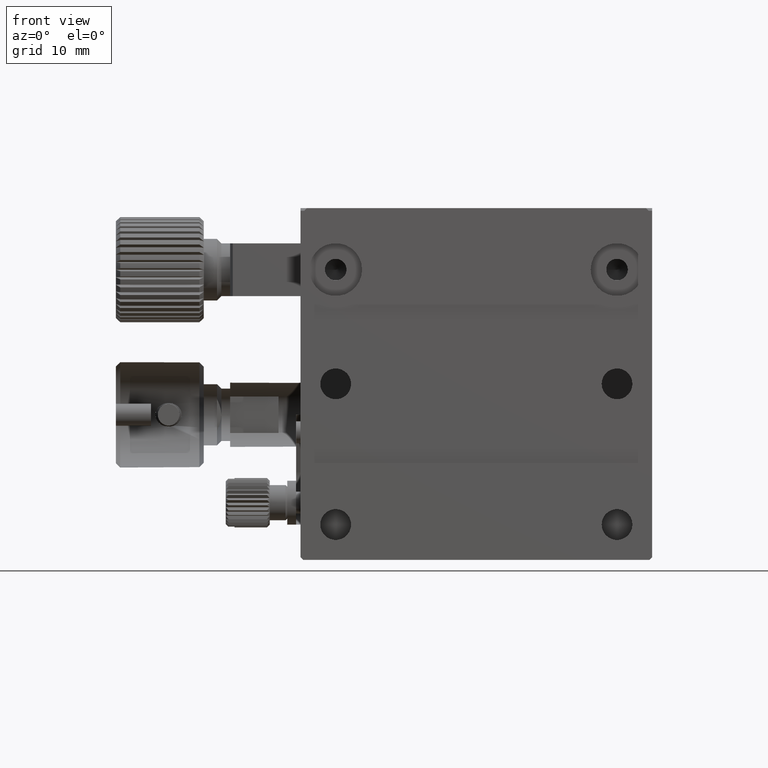
[diagram: clean part render]
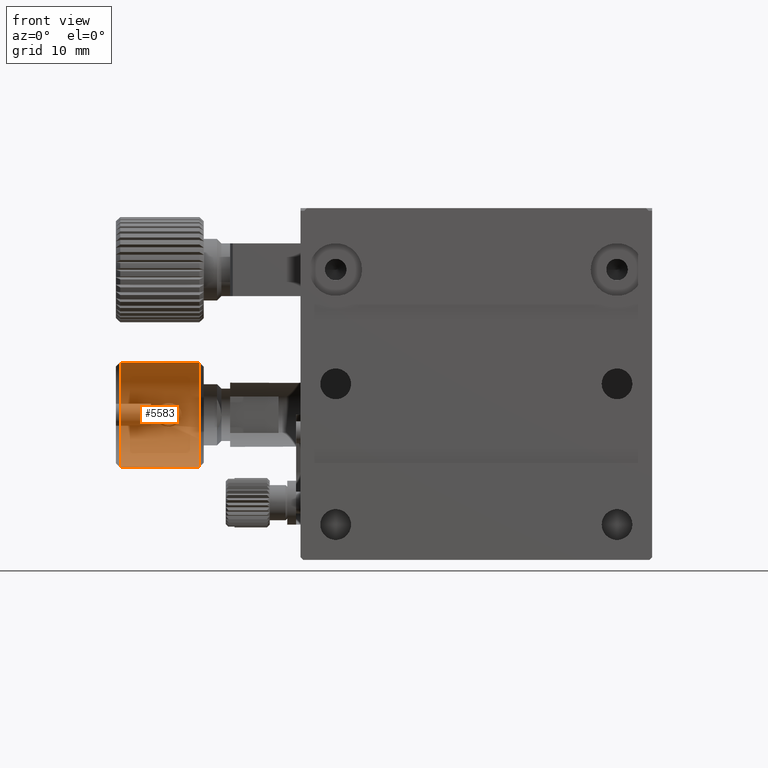
[diagram: same view with one face highlighted and labeled with its STEP entity id]
A machine part, front view. The second image highlights one B-rep face of the part: STEP entity #5583.
In plain terms, the highlighted cylindrical surface (bore or boss wall) has radius 6 mm, axis along (-1, -0, 0).
Its self-contained STEP definition (entity closure, byte-faithful):
#22 = CARTESIAN_POINT ( 'NONE',  ( -14.59815187256463531, 33.85547732965907386, -24.80896342265499754 ) ) ;
#117 = CARTESIAN_POINT ( 'NONE',  ( -14.50807464312807404, 33.85933041520340936, -24.79160639727135873 ) ) ;
#128 = CARTESIAN_POINT ( 'NONE',  ( -11.49999999999999645, 22.00000000000000711, -23.50000000000000000 ) ) ;
#220 = CARTESIAN_POINT ( 'NONE',  ( -14.53842938340480018, 33.85368966296076820, -24.81694167652915084 ) ) ;
#271 = EDGE_CURVE ( 'NONE', #14569, #14569, #4338, .T. ) ;
#318 = CARTESIAN_POINT ( 'NONE',  ( -14.64454077063680160, 33.84596638465675511, -24.85080606656292446 ) ) ;
#409 = CARTESIAN_POINT ( 'NONE',  ( -14.64701626850036575, 33.84578708380155376, -24.85158180324351207 ) ) ;
#432 = CARTESIAN_POINT ( 'NONE',  ( -13.89523326952814308, 33.93050088590032942, -24.41401004206937486 ) ) ;
#485 = CARTESIAN_POINT ( 'NONE',  ( -50.00000000000000000, 27.99999999999999645, -23.50000000000000000 ) ) ;
#506 = CARTESIAN_POINT ( 'NONE',  ( -14.28023316524445541, 33.87163790847883860, -24.73445082236190729 ) ) ;
#549 = EDGE_LOOP ( 'NONE', ( #11217 ) ) ;
#604 = CARTESIAN_POINT ( 'NONE',  ( -14.48700770284660955, 33.85736381613900647, -24.80052285318587124 ) ) ;
#690 = CARTESIAN_POINT ( 'NONE',  ( -14.56240171216548696, 33.85280787879207764, -24.82085653750405640 ) ) ;
#708 = CARTESIAN_POINT ( 'NONE',  ( -13.93233828515123207, 33.92490168700157227, -22.54973388084579966 ) ) ;
#800 = CARTESIAN_POINT ( 'NONE',  ( -15.78525906444292559, 33.88910418664969626, -22.35176140163074621 ) ) ;
#896 = CARTESIAN_POINT ( 'NONE',  ( -16.22428704249219322, 33.95038683751863573, -22.72962798062242484 ) ) ;
#918 = CARTESIAN_POINT ( 'NONE',  ( -11.49999999999999645, 28.00000000000000355, -23.50000000000000000 ) ) ;
#987 = CARTESIAN_POINT ( 'NONE',  ( -14.53874725132028445, 33.86066338116577867, -22.21380243217639716 ) ) ;
#1067 = CARTESIAN_POINT ( 'NONE',  ( -14.51527821878740454, 33.85707530132543042, -24.80179449783890178 ) ) ;
#1085 = CARTESIAN_POINT ( 'NONE',  ( -15.46598883740046837, 33.86156433241004038, -22.21856971433540195 ) ) ;
#1186 = CARTESIAN_POINT ( 'NONE',  ( -15.33979757910854858, 33.85476993812656588, -24.81212384004311744 ) ) ;
#1282 = CARTESIAN_POINT ( 'NONE',  ( -14.58333273833094879, 33.85606280325573181, -24.80634438280025833 ) ) ;
#1388 = CARTESIAN_POINT ( 'NONE',  ( -14.31043504511575470, 33.86977474601178528, -24.74327970750040606 ) ) ;
#1478 = EDGE_CURVE ( 'NONE', #18012, #18012, #11283, .T. ) ;
#1494 = CARTESIAN_POINT ( 'NONE',  ( -15.31106230289858594, 33.85344806083703872, -24.81802213041816429 ) ) ;
#1596 = CARTESIAN_POINT ( 'NONE',  ( -15.45347562089624205, 33.86067916078079776, -24.78559974126726217 ) ) ;
#1695 = CARTESIAN_POINT ( 'NONE',  ( -14.27505602730072631, 33.87198717683380522, -24.73278815947931264 ) ) ;
#1796 = CARTESIAN_POINT ( 'NONE',  ( -14.63172210229369519, 33.84690989306720610, -24.84671643820882991 ) ) ;
#1894 = CARTESIAN_POINT ( 'NONE',  ( -14.43652629300351542, 33.86091470257821356, -24.78439824396583191 ) ) ;
#1913 = CARTESIAN_POINT ( 'NONE',  ( -13.75828006473599885, 33.95312060952738165, -22.75104019613347361 ) ) ;
#1985 = CARTESIAN_POINT ( 'NONE',  ( -14.28711905805123017, 33.87117464012844437, -24.73665212815903303 ) ) ;
#2060 = CYLINDRICAL_SURFACE ( 'NONE', #19314, 5.999999999999998224 ) ;
#2082 = CARTESIAN_POINT ( 'NONE',  ( -14.62622880148807880, 33.84737968347617709, -24.84469024521191827 ) ) ;
#2104 = CARTESIAN_POINT ( 'NONE',  ( -13.47755154632831598, 34.00422158935926831, -23.47283054350310039 ) ) ;
#2198 = CARTESIAN_POINT ( 'NONE',  ( -16.11060013701571236, 33.93176377132803623, -22.59679206459620815 ) ) ;
#2284 = CARTESIAN_POINT ( 'NONE',  ( -14.34605817136026751, 33.87616343589920120, -22.28727444382444745 ) ) ;
#2378 = CARTESIAN_POINT ( 'NONE',  ( -16.37248415955266267, 33.97639734066753903, -24.03235426510197215 ) ) ;
#2474 = CARTESIAN_POINT ( 'NONE',  ( -14.21335041263401600, 33.88902127225746597, -22.35102289706027534 ) ) ;
#2549 = CARTESIAN_POINT ( 'NONE',  ( -14.52738881091771894, 33.85596309507469925, -24.80678913212890180 ) ) ;
#2565 = CARTESIAN_POINT ( 'NONE',  ( -16.38538115400064399, 33.97873630557894842, -24.00541854655704199 ) ) ;
#2662 = CARTESIAN_POINT ( 'NONE',  ( -15.39726813152847029, 33.85741369270561307, -24.80032725929301662 ) ) ;
#2765 = CARTESIAN_POINT ( 'NONE',  ( -14.51024920879697611, 33.85923058902722005, -24.79205925547306322 ) ) ;
#2861 = CARTESIAN_POINT ( 'NONE',  ( -14.32213603329998719, 33.86907370345211632, -24.74658488016133262 ) ) ;
#2962 = CARTESIAN_POINT ( 'NONE',  ( -14.35776018720592795, 33.86700774611755804, -24.75627230606925977 ) ) ;
#3066 = CARTESIAN_POINT ( 'NONE',  ( -14.56841673542771964, 33.85667702096889542, -24.80358852901014188 ) ) ;
#3167 = CARTESIAN_POINT ( 'NONE',  ( -14.58401554362242791, 33.85039550879261583, -24.83149297336512973 ) ) ;
#3243 = DIRECTION ( 'NONE',  ( 0.000000000000000000, -1.000000000000000000, 0.000000000000000000 ) ) ;
#3265 = CARTESIAN_POINT ( 'NONE',  ( -14.62343176418751156, 33.84751862939668854, -24.84407132230305137 ) ) ;
#3285 = CARTESIAN_POINT ( 'NONE',  ( -13.81393866272629012, 33.94385453996342505, -22.68076495588551467 ) ) ;
#3361 = CARTESIAN_POINT ( 'NONE',  ( -14.64977000644503313, 33.84557999490811397, -24.85247722505653556 ) ) ;
#3435 = ORIENTED_EDGE ( 'NONE', *, *, #1478, .F. ) ;
#3461 = CARTESIAN_POINT ( 'NONE',  ( -14.28642942551402051, 33.87122114016541730, -24.73643167177652558 ) ) ;
#3550 = CARTESIAN_POINT ( 'NONE',  ( -14.27410100241049484, 33.87204967977976366, -24.73249041435894924 ) ) ;
#3690 = DIRECTION ( 'NONE',  ( 0.000000000000000000, -1.000000000000000000, 0.000000000000000000 ) ) ;
#3740 = CARTESIAN_POINT ( 'NONE',  ( -14.53334519134713609, 33.85542048415637595, -24.80921768767531432 ) ) ;
#3758 = CARTESIAN_POINT ( 'NONE',  ( -16.20626816759001798, 33.94733869439025398, -22.70647800594487720 ) ) ;
#3851 = CARTESIAN_POINT ( 'NONE',  ( -16.50172688932017095, 34.00032391347703253, -23.59389006757698937 ) ) ;
#3952 = CARTESIAN_POINT ( 'NONE',  ( -14.76858274998892817, 33.85057067841652412, -22.16927736291410866 ) ) ;
#4031 = CARTESIAN_POINT ( 'NONE',  ( -14.58438080868271136, 33.85089662375993669, -24.82928879408297718 ) ) ;
#4051 = CARTESIAN_POINT ( 'NONE',  ( -14.40243723293195188, 33.87130233189502349, -22.26391185866062727 ) ) ;
#4141 = CARTESIAN_POINT ( 'NONE',  ( -14.65230624836584461, 33.85427216992204080, -22.18555110551461240 ) ) ;
#4240 = CARTESIAN_POINT ( 'NONE',  ( -15.50842004721185496, 33.86450004630584942, -24.76792712995609946 ) ) ;
#4338 = B_SPLINE_CURVE_WITH_KNOTS ( 'NONE', 3,
 ( #11028, #432, #16820, #9371, #17006, #15352, #9556, #15538, #2104, #8103, #14059, #9648, #15638, #7706, #12213, #18204, #1913, #16720, #7904, #3285, #13866, #17574, #708, #12767, #8195, #11595, #2474, #14143, #17377, #8469, #2284, #17286, #4051, #14436, #987, #4141, #3952, #6710, #9931, #14535, #12952, #11401, #15919, #18673, #12676, #1085, #14243, #17193, #6991, #5230, #7085, #800, #10023, #10114, #8379, #2198, #8285, #11215, #3758, #896, #9740, #15723, #6800, #18767, #18956, #5325, #14343, #3851, #11307, #16007, #19059, #9833, #15815, #2565, #2378, #6896, #5519, #12855, #18859, #11499, #5420, #17478, #8565, #13051, #5616, #8768, #5915, #16501, #4637, #4440, #4240, #1596, #2662, #1186, #1494, #18079, #15036, #7582, #11988, #8668, #13354, #14631, #16299, #6015, #8960, #10415, #7184, #14729, #13151, #19154, #16202, #9060, #17779, #5710, #22, #1282, #3066, #11798, #11692, #11894, #16103, #10221, #13551, #17675, #7281, #2765, #117, #17880, #13251, #16403, #6116, #19255, #2962, #5811, #12088, #4344, #10320, #7489, #2861, #8862, #14828, #1388, #7381, #19360, #14935, #13461, #17979, #4537, #10515, #1695, #9252, #9156, #7682, #10718, #3550, #12285, #16601, #13939, #506, #16897, #13649, #15425, #10913, #1985, #3461, #10619, #18274, #16798, #1894, #7883, #604, #7786, #16699, #220, #18472, #12570, #16986, #12192, #8083, #15136, #9536, #3167, #15519, #4831, #13845, #4736, #14038, #7978, #3265, #6597, #6219, #1796, #18180, #15228, #9444, #13750, #6403, #6505, #318, #6312, #12481, #11008, #10819, #3361, #9353, #15332, #12386, #409, #18377, #4933, #5026, #2082, #15620, #4031, #17173, #690, #9908, #17078, #10004, #3740, #12932, #2549, #14513, #9721, #6687, #17266, #5400, #11288, #1067, #12657, #5208, #18650 ),
 .UNSPECIFIED., .T., .F.,
 ( 4, 3, 3, 3, 3, 3, 3, 3, 3, 3, 3, 3, 3, 3, 3, 3, 3, 3, 3, 3, 3, 3, 3, 3, 3, 3, 3, 3, 3, 3, 3, 3, 3, 3, 3, 3, 3, 3, 3, 3, 3, 3, 3, 3, 3, 3, 3, 3, 3, 3, 3, 3, 3, 3, 3, 3, 3, 3, 3, 3, 3, 3, 3, 3, 3, 3, 3, 3, 3, 3, 3, 3, 3, 3, 3, 3, 3, 4 ),
 ( 0.000000000000000000, 0.01298701298701298787, 0.02597402597402597574, 0.03896103896103896014, 0.05194805194805195148, 0.06493506493506492894, 0.07792207792207792028, 0.09090909090909091161, 0.1038961038961039030, 0.1168831168831168804, 0.1298701298701298579, 0.1428571428571428492, 0.1558441558441558406, 0.1688311688311688319, 0.1818181818181818232, 0.1948051948051948146, 0.2077922077922078059, 0.2207792207792207695, 0.2337662337662337608, 0.2467532467532467522, 0.2597402597402597157, 0.2727272727272727071, 0.2857142857142856984, 0.2987012987012986898, 0.3116883116883116811, 0.3246753246753246724, 0.3376623376623376638, 0.3506493506493506551, 0.3636363636363636465, 0.3766233766233766378, 0.3896103896103896291, 0.4025974025974026205, 0.4155844155844156118, 0.4285714285714285476, 0.4415584415584415390, 0.4545454545454545303, 0.4675324675324675217, 0.4805194805194805130, 0.4935064935064935043, 0.5064935064935064402, 0.5194805194805194315, 0.5324675324675324228, 0.5454545454545454142, 0.5584415584415584055, 0.5714285714285713969, 0.5844155844155843882, 0.5974025974025973795, 0.6103896103896103709, 0.6233766233766233622, 0.6363636363636363535, 0.6493506493506493449, 0.6623376623376623362, 0.6753246753246753276, 0.6883116883116883189, 0.7012987012987013102, 0.7142857142857143016, 0.7272727272727272929, 0.7402597402597402843, 0.7532467532467532756, 0.7662337662337662669, 0.7792207792207792583, 0.7922077922077922496, 0.8051948051948052409, 0.8181818181818182323, 0.8311688311688312236, 0.8441558441558441039, 0.8571428571428570953, 0.8701298701298700866, 0.8831168831168830780, 0.8961038961038960693, 0.9090909090909090606, 0.9220779220779220520, 0.9350649350649350433, 0.9480519480519480346, 0.9610389610389610260, 0.9740259740259740173, 0.9870129870129870087, 1.000000000000000000 ),
 .UNSPECIFIED. ) ;
#4344 = CARTESIAN_POINT ( 'NONE',  ( -14.33392388637642867, 33.86837881403105399, -24.74985202925444483 ) ) ;
#4351 = CIRCLE ( 'NONE', #8751, 5.999999999999998224 ) ;
#4440 = CARTESIAN_POINT ( 'NONE',  ( -15.61830889984308079, 33.87214181735594565, -24.73258190733377404 ) ) ;
#4537 = CARTESIAN_POINT ( 'NONE',  ( -14.28204212970345743, 33.87153394725604727, -24.73494498104967576 ) ) ;
#4619 = FACE_OUTER_BOUND ( 'NONE', #9178, .T. ) ;
#4637 = CARTESIAN_POINT ( 'NONE',  ( -15.72314550026569080, 33.88203218308971998, -24.68545892962466937 ) ) ;
#4736 = CARTESIAN_POINT ( 'NONE',  ( -14.60693249976951513, 33.84872670793486549, -24.83880662542992468 ) ) ;
#4831 = CARTESIAN_POINT ( 'NONE',  ( -14.59057434912844364, 33.84991861439085170, -24.83358621956117673 ) ) ;
#4933 = CARTESIAN_POINT ( 'NONE',  ( -14.64739432218337356, 33.84575741380859171, -24.85171036091790597 ) ) ;
#4941 = VERTEX_POINT ( 'NONE', #128 ) ;
#5026 = CARTESIAN_POINT ( 'NONE',  ( -14.64504259766167493, 33.84593766599387976, -24.85093034806168788 ) ) ;
#5208 = CARTESIAN_POINT ( 'NONE',  ( -14.12869630209659455, 33.89744040074560161, -24.61121849894205127 ) ) ;
#5230 = CARTESIAN_POINT ( 'NONE',  ( -15.68231880554733770, 33.87847543343229262, -22.29831765973592184 ) ) ;
#5325 = CARTESIAN_POINT ( 'NONE',  ( -16.49610372538350944, 33.99926367785383263, -23.25577680429652361 ) ) ;
#5400 = CARTESIAN_POINT ( 'NONE',  ( -14.51832784807237786, 33.85679426923101687, -24.80305844055860831 ) ) ;
#5420 = CARTESIAN_POINT ( 'NONE',  ( -16.18106667856668324, 33.94250401291179031, -24.33269733555577474 ) ) ;
#5519 = CARTESIAN_POINT ( 'NONE',  ( -16.34463392581935537, 33.97137421471681051, -24.08601725650822445 ) ) ;
#5583 = ADVANCED_FACE ( 'NONE', ( #18356, #12069, #4619 ), #2060, .F. ) ;
#5616 = CARTESIAN_POINT ( 'NONE',  ( -15.96884010195734405, 33.91131274548182262, -24.52780427373317806 ) ) ;
#5710 = CARTESIAN_POINT ( 'NONE',  ( -14.62779014103200836, 33.85430638246575796, -24.81420150236447242 ) ) ;
#5811 = CARTESIAN_POINT ( 'NONE',  ( -14.34975684366795967, 33.86746056934440929, -24.75415754371503851 ) ) ;
#5915 = CARTESIAN_POINT ( 'NONE',  ( -15.87282202258668384, 33.89896445057291885, -24.59686930855939480 ) ) ;
#6015 = CARTESIAN_POINT ( 'NONE',  ( -15.17857616696317358, 33.84909407785498558, -24.83719826532995967 ) ) ;
#6116 = CARTESIAN_POINT ( 'NONE',  ( -14.39000520107034831, 33.86521336296159745, -24.76463005780155768 ) ) ;
#6182 = CARTESIAN_POINT ( 'NONE',  ( -20.50000000002683009, 27.99999999999999645, -23.50000000000000000 ) ) ;
#6219 = CARTESIAN_POINT ( 'NONE',  ( -14.62964748247229352, 33.84706231253167630, -24.84605452100441170 ) ) ;
#6312 = CARTESIAN_POINT ( 'NONE',  ( -14.64604471634200600, 33.84585552082276649, -24.85128585878685925 ) ) ;
#6403 = CARTESIAN_POINT ( 'NONE',  ( -14.64153642727422699, 33.84618779040408754, -24.84984760603828491 ) ) ;
#6505 = CARTESIAN_POINT ( 'NONE',  ( -14.64303682493159897, 33.84607724849074373, -24.85032627433899322 ) ) ;
#6597 = CARTESIAN_POINT ( 'NONE',  ( -14.62757557637736561, 33.84721441815334231, -24.84539345477062255 ) ) ;
#6687 = CARTESIAN_POINT ( 'NONE',  ( -14.52136099141805303, 33.85651546887536512, -24.80431091938685739 ) ) ;
#6710 = CARTESIAN_POINT ( 'NONE',  ( -14.82672100080046818, 33.84871993266376222, -22.16114049161385680 ) ) ;
#6726 = DIRECTION ( 'NONE',  ( 1.000000000000000000, 1.040834085586079943E-16, -0.000000000000000000 ) ) ;
#6800 = CARTESIAN_POINT ( 'NONE',  ( -16.27517807793525506, 33.95916822949391189, -22.80070621032750822 ) ) ;
#6896 = CARTESIAN_POINT ( 'NONE',  ( -16.35855904268601080, 33.97388577769217477, -24.05918576080510007 ) ) ;
#6991 = CARTESIAN_POINT ( 'NONE',  ( -15.62910710104026180, 33.87385150030966230, -22.27612559782064849 ) ) ;
#7085 = CARTESIAN_POINT ( 'NONE',  ( -15.73311964156653886, 33.88346304068746662, -22.32282900347687971 ) ) ;
#7184 = CARTESIAN_POINT ( 'NONE',  ( -15.06674224079888269, 33.84654739796076939, -24.84832504031358269 ) ) ;
#7281 = CARTESIAN_POINT ( 'NONE',  ( -14.51567189329214891, 33.85898309624969471, -24.79318123520398842 ) ) ;
#7381 = CARTESIAN_POINT ( 'NONE',  ( -14.30323811471922291, 33.87020942922167421, -24.74122748022400486 ) ) ;
#7419 = CARTESIAN_POINT ( 'NONE',  ( -20.50000000002683009, 27.99999999999999645, -29.50000000000818545 ) ) ;
#7489 = CARTESIAN_POINT ( 'NONE',  ( -14.32605084017676589, 33.86884104459799971, -24.74768026643166863 ) ) ;
#7518 = EDGE_LOOP ( 'NONE', ( #10598 ) ) ;
#7582 = CARTESIAN_POINT ( 'NONE',  ( -15.23796104932152318, 33.85077213471316071, -24.82983856001591505 ) ) ;
#7682 = CARTESIAN_POINT ( 'NONE',  ( -14.27256073854380425, 33.87215301233003117, -24.73199799637485441 ) ) ;
#7706 = CARTESIAN_POINT ( 'NONE',  ( -13.67642250576916751, 33.96732762176652898, -22.87260934050640770 ) ) ;
#7786 = CARTESIAN_POINT ( 'NONE',  ( -14.51268237886742973, 33.85553152534651389, -24.80872096173062502 ) ) ;
#7883 = CARTESIAN_POINT ( 'NONE',  ( -14.46162234089197085, 33.85915782211496605, -24.79241517063644906 ) ) ;
#7904 = CARTESIAN_POINT ( 'NONE',  ( -13.79509101913447466, 33.94697362510228089, -22.70406991366210647 ) ) ;
#7978 = CARTESIAN_POINT ( 'NONE',  ( -14.61929880690357741, 33.84782158527104912, -24.84275259371914046 ) ) ;
#8083 = CARTESIAN_POINT ( 'NONE',  ( -14.57420219829097618, 33.85110746769613144, -24.82836084797543919 ) ) ;
#8103 = CARTESIAN_POINT ( 'NONE',  ( -13.52928742312489696, 33.99463330098357261, -23.24628443733423921 ) ) ;
#8195 = CARTESIAN_POINT ( 'NONE',  ( -14.11521702568020764, 33.90049293781293471, -22.41179823064852172 ) ) ;
#8285 = CARTESIAN_POINT ( 'NONE',  ( -16.15035365752900987, 33.93808241068184373, -22.63904931191508751 ) ) ;
#8379 = CARTESIAN_POINT ( 'NONE',  ( -16.06836943602980838, 33.92546673649658118, -22.55721478868589358 ) ) ;
#8469 = CARTESIAN_POINT ( 'NONE',  ( -14.31873565100126200, 33.87859929972639605, -22.29907722466246511 ) ) ;
#8565 = CARTESIAN_POINT ( 'NONE',  ( -16.05837430947909539, 33.92374990175792249, -24.45439603962483588 ) ) ;
#8668 = CARTESIAN_POINT ( 'NONE',  ( -15.20835741726320833, 33.84988720338727575, -24.83372399980122580 ) ) ;
#8751 = AXIS2_PLACEMENT_3D ( 'NONE', #918, #6726, #3690 ) ;
#8768 = CARTESIAN_POINT ( 'NONE',  ( -15.92278311573035232, 33.90515383950803141, -24.56322660102985012 ) ) ;
#8794 = AXIS2_PLACEMENT_3D ( 'NONE', #6182, #16571, #15103 ) ;
#8862 = CARTESIAN_POINT ( 'NONE',  ( -14.31822122642320672, 33.86930636230622582, -24.74548949389099306 ) ) ;
#8960 = CARTESIAN_POINT ( 'NONE',  ( -15.16965013843564947, 33.84888092169025242, -24.83813016645169114 ) ) ;
#9060 = CARTESIAN_POINT ( 'NONE',  ( -14.68590425393231946, 33.85231352746296807, -24.82303680080105224 ) ) ;
#9156 = CARTESIAN_POINT ( 'NONE',  ( -14.27364919638428198, 33.87208000932533025, -24.73234589914314796 ) ) ;
#9178 = EDGE_LOOP ( 'NONE', ( #3435 ) ) ;
#9252 = CARTESIAN_POINT ( 'NONE',  ( -14.27435261184250415, 33.87203359307956418, -24.73256702931123030 ) ) ;
#9353 = CARTESIAN_POINT ( 'NONE',  ( -14.64872208261248154, 33.84565843917523154, -24.85213808928653378 ) ) ;
#9371 = CARTESIAN_POINT ( 'NONE',  ( -13.74763803993992539, 33.95503682328621409, -24.23316876181768720 ) ) ;
#9444 = CARTESIAN_POINT ( 'NONE',  ( -14.63929115285990790, 33.84635312164555643, -24.84913128978411123 ) ) ;
#9536 = CARTESIAN_POINT ( 'NONE',  ( -14.58074292166784680, 33.85063303322703376, -24.83044846217833879 ) ) ;
#9556 = CARTESIAN_POINT ( 'NONE',  ( -13.58187352562501005, 33.98496852408102598, -23.92444288868982483 ) ) ;
#9648 = CARTESIAN_POINT ( 'NONE',  ( -13.59517262448403763, 33.98207529831297080, -23.02539799222527606 ) ) ;
#9721 = CARTESIAN_POINT ( 'NONE',  ( -14.52287206777778650, 33.85637681383888520, -24.80493333776560050 ) ) ;
#9740 = CARTESIAN_POINT ( 'NONE',  ( -16.24168662227622306, 33.95337448750124310, -22.75345314174574085 ) ) ;
#9833 = CARTESIAN_POINT ( 'NONE',  ( -16.42098777008858690, 33.98522413839147305, -23.92430518335562795 ) ) ;
#9908 = CARTESIAN_POINT ( 'NONE',  ( -14.55088461384960397, 33.85383822998263526, -24.81627427886203918 ) ) ;
#9931 = CARTESIAN_POINT ( 'NONE',  ( -14.88497934782462195, 33.84755295146824494, -22.15607713318281569 ) ) ;
#10004 = CARTESIAN_POINT ( 'NONE',  ( -14.53927959052416874, 33.85488089699499881, -24.81163096832948511 ) ) ;
#10023 = CARTESIAN_POINT ( 'NONE',  ( -15.88953791019569550, 33.90038647857415555, -22.40962619793847921 ) ) ;
#10114 = CARTESIAN_POINT ( 'NONE',  ( -15.98390803405799332, 33.91287266683367818, -22.47806023686526800 ) ) ;
#10221 = CARTESIAN_POINT ( 'NONE',  ( -14.52703446993310088, 33.85847162065842753, -24.79549638044537119 ) ) ;
#10320 = CARTESIAN_POINT ( 'NONE',  ( -14.32998012453558090, 33.86860941128750824, -24.74876931544301684 ) ) ;
#10415 = CARTESIAN_POINT ( 'NONE',  ( -15.16359673269231045, 33.84874365558851395, -24.83872986491415347 ) ) ;
#10515 = CARTESIAN_POINT ( 'NONE',  ( -14.27933105814343584, 33.87170768143323585, -24.73411896358749473 ) ) ;
#10598 = ORIENTED_EDGE ( 'NONE', *, *, #17515, .T. ) ;
#10600 = DIRECTION ( 'NONE',  ( -1.000000000000000000, -1.040834085586079943E-16, 0.000000000000000000 ) ) ;
#10619 = CARTESIAN_POINT ( 'NONE',  ( -14.28942177446698736, 33.87101952883684675, -24.73738825435526678 ) ) ;
#10718 = CARTESIAN_POINT ( 'NONE',  ( -14.27333087047714955, 33.87210134605489742, -24.73224420536690005 ) ) ;
#10819 = CARTESIAN_POINT ( 'NONE',  ( -14.64936944892603066, 33.84561023050412842, -24.85234649519921035 ) ) ;
#10913 = CARTESIAN_POINT ( 'NONE',  ( -14.28596978638464776, 33.87125200200551234, -24.73628472810525736 ) ) ;
#11008 = CARTESIAN_POINT ( 'NONE',  ( -14.64906325189591030, 33.84563282655398098, -24.85224881479502912 ) ) ;
#11028 = CARTESIAN_POINT ( 'NONE',  ( -13.98757366101138722, 33.91742464805561497, -24.49201085406555123 ) ) ;
#11215 = CARTESIAN_POINT ( 'NONE',  ( -16.18762999756968313, 33.94425326648745056, -22.68400177460161515 ) ) ;
#11217 = ORIENTED_EDGE ( 'NONE', *, *, #271, .F. ) ;
#11283 = CIRCLE ( 'NONE', #8794, 6.000000000008186340 ) ;
#11288 = CARTESIAN_POINT ( 'NONE',  ( -14.51857009999728021, 33.85677169175843915, -24.80316050768075087 ) ) ;
#11307 = CARTESIAN_POINT ( 'NONE',  ( -16.48715131860034688, 33.99749706561924967, -23.70519945673211737 ) ) ;
#11401 = CARTESIAN_POINT ( 'NONE',  ( -15.05867540466527998, 33.84685747007676326, -22.15304908831466335 ) ) ;
#11499 = CARTESIAN_POINT ( 'NONE',  ( -16.25254253156282402, 33.95491930565032845, -24.24123760077805301 ) ) ;
#11595 = CARTESIAN_POINT ( 'NONE',  ( -14.16316804970889365, 33.89463689547577019, -22.38004535408905937 ) ) ;
#11692 = CARTESIAN_POINT ( 'NONE',  ( -14.54589742806857977, 33.85764059599570430, -24.79924933841470036 ) ) ;
#11798 = CARTESIAN_POINT ( 'NONE',  ( -14.55340386385495854, 33.85731940432010134, -24.80069573527984872 ) ) ;
#11894 = CARTESIAN_POINT ( 'NONE',  ( -14.53836677511482200, 33.85796882818127784, -24.79776870639014064 ) ) ;
#11988 = CARTESIAN_POINT ( 'NONE',  ( -15.22319870401274855, 33.85030929344814155, -24.83187265780983921 ) ) ;
#12069 = FACE_OUTER_BOUND ( 'NONE', #7518, .T. ) ;
#12088 = CARTESIAN_POINT ( 'NONE',  ( -14.34181141005812599, 33.86791761951815971, -24.75201745687730437 ) ) ;
#12192 = CARTESIAN_POINT ( 'NONE',  ( -14.57093861740096230, 33.85134376565881098, -24.82731915381559062 ) ) ;
#12213 = CARTESIAN_POINT ( 'NONE',  ( -13.70704313067151503, 33.96189335753146565, -22.82311691484259697 ) ) ;
#12285 = CARTESIAN_POINT ( 'NONE',  ( -14.27338204812595279, 33.87209795924270850, -24.73226057012450951 ) ) ;
#12386 = CARTESIAN_POINT ( 'NONE',  ( -14.64762951599216834, 33.84574054436011181, -24.85178309306924049 ) ) ;
#12481 = CARTESIAN_POINT ( 'NONE',  ( -14.64875705486578994, 33.84565542260382642, -24.85215113439085144 ) ) ;
#12570 = CARTESIAN_POINT ( 'NONE',  ( -14.55790237597005188, 33.85228650922757510, -24.82315801260516608 ) ) ;
#12657 = CARTESIAN_POINT ( 'NONE',  ( -14.30459782135526581, 33.87650631361329090, -24.71436986796075530 ) ) ;
#12676 = CARTESIAN_POINT ( 'NONE',  ( -15.35492122822822658, 33.85448797343057237, -22.18620077951204550 ) ) ;
#12767 = CARTESIAN_POINT ( 'NONE',  ( -14.01931497762283563, 33.91220502248727797, -22.47530398376744643 ) ) ;
#12855 = CARTESIAN_POINT ( 'NONE',  ( -16.32898852314684035, 33.96856648840366688, -24.11389750232070739 ) ) ;
#12932 = CARTESIAN_POINT ( 'NONE',  ( -14.53037799175861977, 33.85569027773706807, -24.80801104734822715 ) ) ;
#12952 = CARTESIAN_POINT ( 'NONE',  ( -15.00173623429813929, 33.84663437077215775, -22.15208652848754056 ) ) ;
#13051 = CARTESIAN_POINT ( 'NONE',  ( -16.01489708818433400, 33.91747165145560672, -24.49238194643650601 ) ) ;
#13151 = CARTESIAN_POINT ( 'NONE',  ( -14.85443447246110438, 33.84814277297473240, -24.84135234256457281 ) ) ;
#13251 = CARTESIAN_POINT ( 'NONE',  ( -14.43941510057342725, 33.86259979393705777, -24.77671122841589479 ) ) ;
#13354 = CARTESIAN_POINT ( 'NONE',  ( -15.20093677388844000, 33.84967615835683574, -24.83464967079691732 ) ) ;
#13461 = CARTESIAN_POINT ( 'NONE',  ( -14.28761217176320564, 33.87117927980962406, -24.73663037999328651 ) ) ;
#13551 = CARTESIAN_POINT ( 'NONE',  ( -14.52325098058068065, 33.85864095879431801, -24.79473037546855707 ) ) ;
#13649 = CARTESIAN_POINT ( 'NONE',  ( -14.28367263407901966, 33.87140659666447107, -24.73555037004721768 ) ) ;
#13750 = CARTESIAN_POINT ( 'NONE',  ( -14.64003957766468034, 33.84629801123173820, -24.84937006186883579 ) ) ;
#13845 = CARTESIAN_POINT ( 'NONE',  ( -14.59873171463714492, 33.84932512980058306, -24.83618960320522362 ) ) ;
#13866 = CARTESIAN_POINT ( 'NONE',  ( -13.83477411404392932, 33.94046820795132646, -22.65661155068678312 ) ) ;
#13939 = CARTESIAN_POINT ( 'NONE',  ( -14.27794575013153633, 33.87179160098055064, -24.73371955900856278 ) ) ;
#14038 = CARTESIAN_POINT ( 'NONE',  ( -14.61517670452555606, 33.84812329282565457, -24.84143727095606735 ) ) ;
#14059 = CARTESIAN_POINT ( 'NONE',  ( -13.55515536152318745, 33.98983915679572476, -23.13301138424981218 ) ) ;
#14143 = CARTESIAN_POINT ( 'NONE',  ( -14.26576411445558357, 33.88376548315316938, -22.32471121027409211 ) ) ;
#14243 = CARTESIAN_POINT ( 'NONE',  ( -15.52152264198658749, 33.86510251189977083, -22.23475418174707841 ) ) ;
#14343 = CARTESIAN_POINT ( 'NONE',  ( -16.49985250134128378, 33.99997050160263257, -23.48118564648349960 ) ) ;
#14436 = CARTESIAN_POINT ( 'NONE',  ( -14.42969923660961840, 33.86917454174917452, -22.25388997336377983 ) ) ;
#14513 = CARTESIAN_POINT ( 'NONE',  ( -14.52437764882443005, 33.85623890758415655, -24.80555193588670093 ) ) ;
#14535 = CARTESIAN_POINT ( 'NONE',  ( -14.94335779106138062, 33.84709366112020490, -22.15408183083517812 ) ) ;
#14569 = VERTEX_POINT ( 'NONE', #16041 ) ;
#14631 = CARTESIAN_POINT ( 'NONE',  ( -15.19349639515347228, 33.84947529952057721, -24.83552965249685229 ) ) ;
#14729 = CARTESIAN_POINT ( 'NONE',  ( -14.96368815405514496, 33.84634319341356701, -24.84919830359290316 ) ) ;
#14828 = CARTESIAN_POINT ( 'NONE',  ( -14.31223427771488765, 33.86966607520930950, -24.74379276431950458 ) ) ;
#14935 = CARTESIAN_POINT ( 'NONE',  ( -14.29061904120264259, 33.87099110346809994, -24.73752311614709143 ) ) ;
#15036 = CARTESIAN_POINT ( 'NONE',  ( -15.25264445318954465, 33.85127515561623568, -24.82762157758459409 ) ) ;
#15103 = DIRECTION ( 'NONE',  ( 0.000000000000000000, 0.000000000000000000, -1.000000000000000000 ) ) ;
#15136 = CARTESIAN_POINT ( 'NONE',  ( -14.57747029971326747, 33.85087055766144459, -24.82940395099154784 ) ) ;
#15228 = CARTESIAN_POINT ( 'NONE',  ( -14.63587676938946558, 33.84660442468372565, -24.84804197407119375 ) ) ;
#15332 = CARTESIAN_POINT ( 'NONE',  ( -14.64819812069620752, 33.84569766130879032, -24.85196852140152757 ) ) ;
#15352 = CARTESIAN_POINT ( 'NONE',  ( -13.62527093737881856, 33.97698769181317857, -24.03697871198166780 ) ) ;
#15425 = CARTESIAN_POINT ( 'NONE',  ( -14.28482051471806535, 33.87132936388257320, -24.73591732805148169 ) ) ;
#15519 = CARTESIAN_POINT ( 'NONE',  ( -14.58853500775126832, 33.85006698553841176, -24.83293537365016590 ) ) ;
#15538 = CARTESIAN_POINT ( 'NONE',  ( -13.49507870211739124, 34.00093018861673499, -23.69937124210613177 ) ) ;
#15620 = CARTESIAN_POINT ( 'NONE',  ( -14.60600820516175702, 33.84903626661711229, -24.83747720082678967 ) ) ;
#15638 = CARTESIAN_POINT ( 'NONE',  ( -13.64933921200745637, 33.97224351394867625, -22.92353889107936382 ) ) ;
#15723 = CARTESIAN_POINT ( 'NONE',  ( -16.25908620206024935, 33.95636213748385046, -22.77727830286905331 ) ) ;
#15815 = CARTESIAN_POINT ( 'NONE',  ( -16.39725002602995829, 33.98089891651645189, -23.97838075882323849 ) ) ;
#15919 = CARTESIAN_POINT ( 'NONE',  ( -15.11885340940948730, 33.84783378748181093, -22.15730122738337116 ) ) ;
#16007 = CARTESIAN_POINT ( 'NONE',  ( -16.45612578918180446, 33.99172831441310905, -23.81494730711699503 ) ) ;
#16041 = CARTESIAN_POINT ( 'NONE',  ( -13.98757366101138722, 33.91742464805561497, -24.49201085406555123 ) ) ;
#16103 = CARTESIAN_POINT ( 'NONE',  ( -14.53081190499367459, 33.85830402316604193, -24.79625382242696219 ) ) ;
#16202 = CARTESIAN_POINT ( 'NONE',  ( -14.74363089215449207, 33.85043964402781569, -24.83132572622612244 ) ) ;
#16299 = CARTESIAN_POINT ( 'NONE',  ( -15.18603628105832293, 33.84928468868778140, -24.83636395891340598 ) ) ;
#16403 = CARTESIAN_POINT ( 'NONE',  ( -14.40647516757137581, 33.86434217328675089, -24.76865711467300457 ) ) ;
#16501 = CARTESIAN_POINT ( 'NONE',  ( -15.82292984847968853, 33.89332036141185256, -24.62639918224781610 ) ) ;
#16571 = DIRECTION ( 'NONE',  ( 1.000000000000000000, 0.000000000000000000, 0.000000000000000000 ) ) ;
#16601 = CARTESIAN_POINT ( 'NONE',  ( -14.27566389912874456, 33.87194478011162602, -24.73299006456653615 ) ) ;
#16699 = CARTESIAN_POINT ( 'NONE',  ( -14.52551971687783983, 33.85461537995026049, -24.81282001600300546 ) ) ;
#16720 = CARTESIAN_POINT ( 'NONE',  ( -13.77624337554265743, 33.95009271024113673, -22.72737487143870183 ) ) ;
#16798 = CARTESIAN_POINT ( 'NONE',  ( -14.38633419722660634, 33.86442846350471569, -24.76836439062460471 ) ) ;
#16820 = CARTESIAN_POINT ( 'NONE',  ( -13.81525472917098796, 33.94339187867628027, -24.32775281608826035 ) ) ;
#16897 = CARTESIAN_POINT ( 'NONE',  ( -14.28252614446749647, 33.87148370060259595, -24.73518385415211540 ) ) ;
#16986 = CARTESIAN_POINT ( 'NONE',  ( -14.56441145562093809, 33.85181636158417717, -24.82523576549588284 ) ) ;
#17006 = CARTESIAN_POINT ( 'NONE',  ( -13.68002135070886283, 33.96668176789614080, -24.13858470754711405 ) ) ;
#17078 = CARTESIAN_POINT ( 'NONE',  ( -14.54512606469165981, 33.85435340557791051, -24.81398314954103057 ) ) ;
#17173 = CARTESIAN_POINT ( 'NONE',  ( -14.57356711044318764, 33.85182680233135244, -24.82519459071107093 ) ) ;
#17193 = CARTESIAN_POINT ( 'NONE',  ( -15.57589539653318589, 33.86922756718703198, -22.25393353590537515 ) ) ;
#17266 = CARTESIAN_POINT ( 'NONE',  ( -14.51984441974521545, 33.85665486905318744, -24.80368467997273285 ) ) ;
#17286 = CARTESIAN_POINT ( 'NONE',  ( -14.37338069171927302, 33.87372757207199925, -22.27547166298642978 ) ) ;
#17377 = CARTESIAN_POINT ( 'NONE',  ( -14.29197096536636735, 33.88113758860102109, -22.31155536688099872 ) ) ;
#17478 = CARTESIAN_POINT ( 'NONE',  ( -16.09927176584162467, 33.93000127214254746, -24.41382980493514765 ) ) ;
#17515 = EDGE_CURVE ( 'NONE', #4941, #4941, #4351, .T. ) ;
#17574 = CARTESIAN_POINT ( 'NONE',  ( -13.85428694826538987, 33.93735490376137420, -22.63523601671858643 ) ) ;
#17675 = CARTESIAN_POINT ( 'NONE',  ( -14.51946143693641567, 33.85881202752200636, -24.79395580533627452 ) ) ;
#17779 = CARTESIAN_POINT ( 'NONE',  ( -14.65704093482123405, 33.85325046918055136, -24.81889233808851714 ) ) ;
#17880 = CARTESIAN_POINT ( 'NONE',  ( -14.47328159242566059, 33.86092763402244543, -24.78436066604404431 ) ) ;
#17979 = CARTESIAN_POINT ( 'NONE',  ( -14.28475320126348080, 33.87136021307885869, -24.73577099851186034 ) ) ;
#18012 = VERTEX_POINT ( 'NONE', #7419 ) ;
#18079 = CARTESIAN_POINT ( 'NONE',  ( -15.28201126092558226, 33.85228119742239272, -24.82318761272194507 ) ) ;
#18180 = CARTESIAN_POINT ( 'NONE',  ( -14.63379943584158127, 33.84675715887546943, -24.84737920614001183 ) ) ;
#18204 = CARTESIAN_POINT ( 'NONE',  ( -13.74120108671450424, 33.95604485886207868, -22.77506576903651592 ) ) ;
#18274 = CARTESIAN_POINT ( 'NONE',  ( -14.33729935771443209, 33.86779374757976768, -24.75269357561511896 ) ) ;
#18356 = FACE_BOUND ( 'NONE', #549, .T. ) ;
#18377 = CARTESIAN_POINT ( 'NONE',  ( -14.64640302100856495, 33.84583362324298861, -24.85138051341778009 ) ) ;
#18472 = CARTESIAN_POINT ( 'NONE',  ( -14.55141137844830013, 33.85275422713863946, -24.82108590057982411 ) ) ;
#18650 = CARTESIAN_POINT ( 'NONE',  ( -13.98757366101138722, 33.91742464805561497, -24.49201085406555123 ) ) ;
#18673 = CARTESIAN_POINT ( 'NONE',  ( -15.23920941889790193, 33.84978642229189916, -22.16580550552078321 ) ) ;
#18767 = CARTESIAN_POINT ( 'NONE',  ( -16.29202747627384085, 33.96213139285008253, -22.82695523596752452 ) ) ;
#18859 = CARTESIAN_POINT ( 'NONE',  ( -16.31369932483003993, 33.96583705185300062, -24.13936552201217722 ) ) ;
#18956 = CARTESIAN_POINT ( 'NONE',  ( -16.42682266298252003, 33.98583669969944765, -23.03694744108764425 ) ) ;
#19059 = CARTESIAN_POINT ( 'NONE',  ( -16.44061302447253325, 33.98884393881004939, -23.86982123230943387 ) ) ;
#19154 = CARTESIAN_POINT ( 'NONE',  ( -14.79980763166408408, 33.84904256275530798, -24.83742936205041119 ) ) ;
#19255 = CARTESIAN_POINT ( 'NONE',  ( -14.37376687428186450, 33.86610209966386975, -24.76050183077770939 ) ) ;
#19314 = AXIS2_PLACEMENT_3D ( 'NONE', #485, #10600, #3243 ) ;
#19360 = CARTESIAN_POINT ( 'NONE',  ( -14.29663278008151650, 33.87061475078505168, -24.73930858845470837 ) ) ;